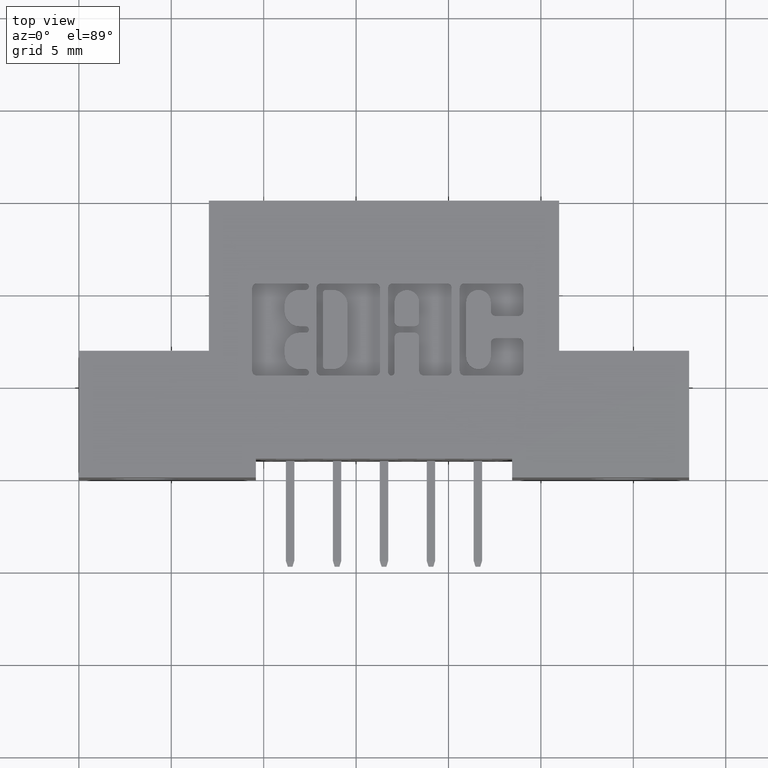
[diagram: clean part render]
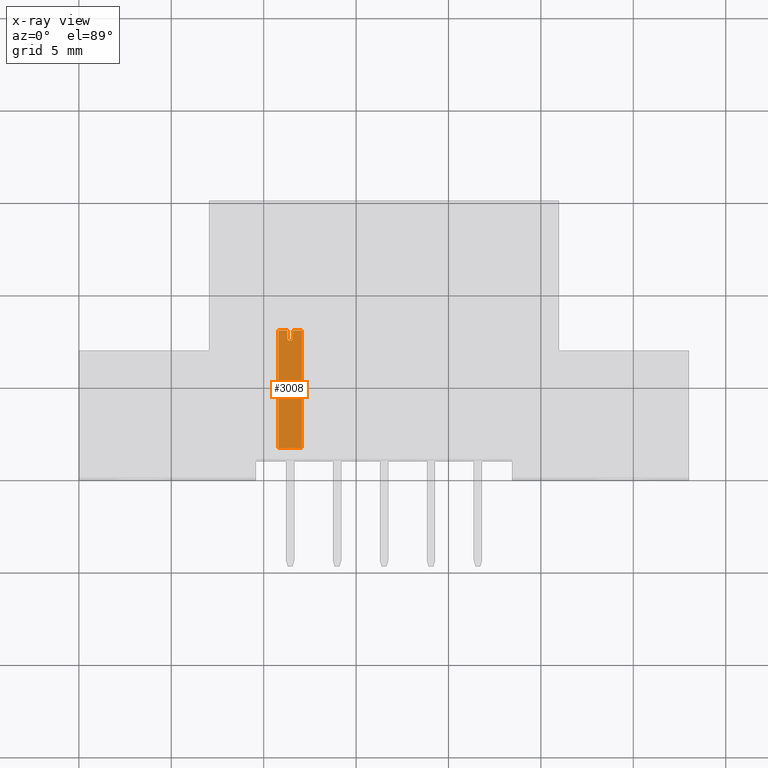
[diagram: x-ray — body ghosted, one internal face saturated and labeled with its STEP entity id]
A machine part, top view, then the same camera in x-ray: the body is ghosted and one INTERNAL B-rep face — a face not visible from any outside direction — is saturated and labeled: STEP entity #3008.
In plain terms, the highlighted planar face has unit normal (-0, -0, -1).
Its self-contained STEP definition (entity closure, byte-faithful):
#223 = AXIS2_PLACEMENT_3D ( 'NONE', #703, #2103, #2003 ) ;
#293 = VECTOR ( 'NONE', #4237, 39.37007874015748100 ) ;
#327 = CARTESIAN_POINT ( 'NONE',  ( 0.3462132034355980800, 0.01249999999999993500, 1.229331597148918500E-015 ) ) ;
#607 = EDGE_CURVE ( 'NONE', #643, #921, #5636, .T. ) ;
#643 = VERTEX_POINT ( 'NONE', #4777 ) ;
#692 = VECTOR ( 'NONE', #4262, 39.37007874015748100 ) ;
#703 = CARTESIAN_POINT ( 'NONE',  ( 0.3462132034355980800, 0.01249999999999993500, 1.229331597148918500E-015 ) ) ;
#813 = AXIS2_PLACEMENT_3D ( 'NONE', #327, #4608, #925 ) ;
#921 = VERTEX_POINT ( 'NONE', #969 ) ;
#925 = DIRECTION ( 'NONE',  ( 1.000000000000000000, 0.0000000000000000000, 8.865746535170562600E-016 ) ) ;
#927 = CARTESIAN_POINT ( 'NONE',  ( 0.3300000000000017900, 0.01249999999999993500, -0.02499999999999864100 ) ) ;
#969 = CARTESIAN_POINT ( 'NONE',  ( 0.5802132034355981200, 0.01249999999999979800, 0.01250000000000116500 ) ) ;
#985 = ORIENTED_EDGE ( 'NONE', *, *, #2022, .T. ) ;
#1211 = CARTESIAN_POINT ( 'NONE',  ( 0.5802132034355981200, 0.01249999999999979800, 0.02500000000000109800 ) ) ;
#1302 = ORIENTED_EDGE ( 'NONE', *, *, #1380, .T. ) ;
#1380 = EDGE_CURVE ( 'NONE', #7655, #4615, #1636, .T. ) ;
#1548 = VERTEX_POINT ( 'NONE', #5077 ) ;
#1593 = ORIENTED_EDGE ( 'NONE', *, *, #607, .T. ) ;
#1636 = CIRCLE ( 'NONE', #223, 0.006000000000000086000 ) ;
#1646 = DIRECTION ( 'NONE',  ( -1.000000000000000000, -1.362751838683405700E-016, -7.585192788140382300E-016 ) ) ;
#1715 = LINE ( 'NONE', #7930, #293 ) ;
#1742 = EDGE_CURVE ( 'NONE', #5794, #5079, #7150, .T. ) ;
#1891 = LINE ( 'NONE', #5401, #6677 ) ;
#1936 = VERTEX_POINT ( 'NONE', #5728 ) ;
#2003 = DIRECTION ( 'NONE',  ( 1.000000000000000000, 0.0000000000000000000, 8.865746535170562600E-016 ) ) ;
#2022 = EDGE_CURVE ( 'NONE', #1548, #643, #1715, .T. ) ;
#2043 = ORIENTED_EDGE ( 'NONE', *, *, #7288, .T. ) ;
#2103 = DIRECTION ( 'NONE',  ( -5.803643937184031900E-016, 1.000000000000000000, -5.558677638805159700E-018 ) ) ;
#2224 = VERTEX_POINT ( 'NONE', #1211 ) ;
#2240 = DIRECTION ( 'NONE',  ( 1.362751838683405700E-016, -1.000000000000000000, 5.558677638804766000E-018 ) ) ;
#2448 = LINE ( 'NONE', #3174, #692 ) ;
#2698 = CARTESIAN_POINT ( 'NONE',  ( 0.3300000000000017900, 0.01249999999999993500, -0.02499999999999864100 ) ) ;
#2948 = CARTESIAN_POINT ( 'NONE',  ( 0.5802132034355981200, 0.01249999999999979800, 0.02500000000000109800 ) ) ;
#2977 = PLANE ( 'NONE',  #4813 ) ;
#3008 = ADVANCED_FACE ( 'NONE', ( #7535 ), #2977, .T. ) ;
#3174 = CARTESIAN_POINT ( 'NONE',  ( 0.3300000000000017900, 0.01249999999999993500, 0.02500000000000109800 ) ) ;
#3281 = VERTEX_POINT ( 'NONE', #4135 ) ;
#3712 = CARTESIAN_POINT ( 'NONE',  ( 0.5802132034355981200, 0.01249999999999979800, 0.02500000000000109800 ) ) ;
#3746 = LINE ( 'NONE', #3712, #5438 ) ;
#3870 = EDGE_LOOP ( 'NONE', ( #7384, #6550, #1302, #5483, #2043, #3888, #4789, #985, #1593, #7841, #7389 ) ) ;
#3874 = DIRECTION ( 'NONE',  ( -8.865746535170506300E-016, 5.558677638804838500E-018, -1.000000000000000000 ) ) ;
#3888 = ORIENTED_EDGE ( 'NONE', *, *, #1742, .T. ) ;
#3953 = VECTOR ( 'NONE', #4024, 39.37007874015748100 ) ;
#4024 = DIRECTION ( 'NONE',  ( 8.865746535170506300E-016, -5.558677638804838500E-018, 1.000000000000000000 ) ) ;
#4112 = CARTESIAN_POINT ( 'NONE',  ( 0.3300000000000017900, 0.01249999999999993500, -0.02499999999999864100 ) ) ;
#4135 = CARTESIAN_POINT ( 'NONE',  ( 0.3300000000000017900, 0.01249999999999993500, 0.02500000000000109800 ) ) ;
#4237 = DIRECTION ( 'NONE',  ( 8.865746535170506300E-016, -5.558677638804838500E-018, 1.000000000000000000 ) ) ;
#4262 = DIRECTION ( 'NONE',  ( 1.000000000000000000, 1.362751838683405700E-016, 8.865746535170506300E-016 ) ) ;
#4288 = DIRECTION ( 'NONE',  ( 1.000000000000000000, 1.362751838683405700E-016, 8.865746535170506300E-016 ) ) ;
#4497 = CARTESIAN_POINT ( 'NONE',  ( 0.3300000000000017900, 0.01249999999999993500, -0.02499999999999864100 ) ) ;
#4608 = DIRECTION ( 'NONE',  ( -5.803643937184031900E-016, 1.000000000000000000, -5.558677638805159700E-018 ) ) ;
#4615 = VERTEX_POINT ( 'NONE', #4658 ) ;
#4658 = CARTESIAN_POINT ( 'NONE',  ( 0.3522132034355982000, 0.01249999999999994000, 1.235206912833901300E-015 ) ) ;
#4716 = CIRCLE ( 'NONE', #813, 0.006000000000000086000 ) ;
#4724 = VECTOR ( 'NONE', #7788, 39.37007874015748100 ) ;
#4777 = CARTESIAN_POINT ( 'NONE',  ( 0.5802132034355981200, 0.01249999999999979800, -0.01249999999999884200 ) ) ;
#4789 = ORIENTED_EDGE ( 'NONE', *, *, #6679, .T. ) ;
#4813 = AXIS2_PLACEMENT_3D ( 'NONE', #7159, #2240, #7143 ) ;
#4897 = EDGE_CURVE ( 'NONE', #3281, #2224, #2448, .T. ) ;
#5028 = EDGE_CURVE ( 'NONE', #7671, #7655, #7695, .T. ) ;
#5077 = CARTESIAN_POINT ( 'NONE',  ( 0.5802132034355981200, 0.01249999999999979800, -0.02499999999999877700 ) ) ;
#5079 = VERTEX_POINT ( 'NONE', #2698 ) ;
#5139 = CARTESIAN_POINT ( 'NONE',  ( 0.3300000000000017900, 0.01249999999999993500, 0.006000000000001383600 ) ) ;
#5401 = CARTESIAN_POINT ( 'NONE',  ( 0.3300000000000017900, 0.01249999999999993500, -0.005999999999998925500 ) ) ;
#5438 = VECTOR ( 'NONE', #6223, 39.37007874015748100 ) ;
#5483 = ORIENTED_EDGE ( 'NONE', *, *, #7130, .T. ) ;
#5516 = VECTOR ( 'NONE', #3874, 39.37007874015748100 ) ;
#5636 = LINE ( 'NONE', #2948, #3953 ) ;
#5728 = CARTESIAN_POINT ( 'NONE',  ( 0.3462132034355980800, 0.01249999999999993500, -0.005999999999998925500 ) ) ;
#5794 = VERTEX_POINT ( 'NONE', #6307 ) ;
#5879 = EDGE_CURVE ( 'NONE', #3281, #7671, #7441, .T. ) ;
#6027 = VECTOR ( 'NONE', #6360, 39.37007874015748100 ) ;
#6103 = VECTOR ( 'NONE', #4288, 39.37007874015748100 ) ;
#6223 = DIRECTION ( 'NONE',  ( 8.865746535170506300E-016, -5.558677638804838500E-018, 1.000000000000000000 ) ) ;
#6307 = CARTESIAN_POINT ( 'NONE',  ( 0.3300000000000017900, 0.01249999999999993500, -0.005999999999998925500 ) ) ;
#6360 = DIRECTION ( 'NONE',  ( -8.865746535170506300E-016, 5.558677638804838500E-018, -1.000000000000000000 ) ) ;
#6392 = EDGE_CURVE ( 'NONE', #921, #2224, #3746, .T. ) ;
#6393 = LINE ( 'NONE', #4112, #4724 ) ;
#6550 = ORIENTED_EDGE ( 'NONE', *, *, #5028, .T. ) ;
#6677 = VECTOR ( 'NONE', #1646, 39.37007874015748100 ) ;
#6679 = EDGE_CURVE ( 'NONE', #5079, #1548, #6393, .T. ) ;
#6966 = CARTESIAN_POINT ( 'NONE',  ( 0.3462132034355980800, 0.01249999999999993500, 0.006000000000001383600 ) ) ;
#7072 = CARTESIAN_POINT ( 'NONE',  ( 0.3300000000000017900, 0.01249999999999993500, 0.006000000000001383600 ) ) ;
#7130 = EDGE_CURVE ( 'NONE', #4615, #1936, #4716, .T. ) ;
#7143 = DIRECTION ( 'NONE',  ( 1.000000000000000000, 1.362751838683405700E-016, 8.865746535170506300E-016 ) ) ;
#7150 = LINE ( 'NONE', #927, #5516 ) ;
#7159 = CARTESIAN_POINT ( 'NONE',  ( 0.3300000000000017900, 0.01249999999999993500, -0.02499999999999864100 ) ) ;
#7288 = EDGE_CURVE ( 'NONE', #1936, #5794, #1891, .T. ) ;
#7384 = ORIENTED_EDGE ( 'NONE', *, *, #5879, .T. ) ;
#7389 = ORIENTED_EDGE ( 'NONE', *, *, #4897, .F. ) ;
#7441 = LINE ( 'NONE', #4497, #6027 ) ;
#7535 = FACE_OUTER_BOUND ( 'NONE', #3870, .T. ) ;
#7655 = VERTEX_POINT ( 'NONE', #6966 ) ;
#7671 = VERTEX_POINT ( 'NONE', #5139 ) ;
#7695 = LINE ( 'NONE', #7072, #6103 ) ;
#7788 = DIRECTION ( 'NONE',  ( 1.000000000000000000, 1.362751838683405700E-016, 8.865746535170506300E-016 ) ) ;
#7841 = ORIENTED_EDGE ( 'NONE', *, *, #6392, .T. ) ;
#7930 = CARTESIAN_POINT ( 'NONE',  ( 0.5802132034355981200, 0.01249999999999979800, 0.02500000000000109800 ) ) ;